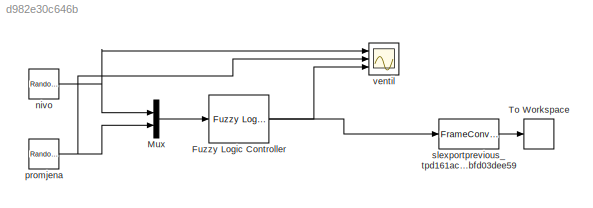
MODEL slx_d982e30c646b
KIND model
BLOCK [Reference] Fuzzy Logic Controller  REF=fuzblock/Fuzzy Logic   (lib defined in mdl_858b3b3e7478)
Controller
  FIS = fazzi
  Ports = [1, 1]
  RTWMemSecDataConstants = Inherit from model
  RTWMemSecDataInternal = Inherit from model
  RTWMemSecDataParameters = Inherit from model
  RTWMemSecFuncExecute = Inherit from model
  RTWMemSecFuncInitTerm = Inherit from model
  SourceBlock = fuzblock/Fuzzy Logic \nController
  SourceType = Fuzzy Inference System
BLOCK [Mux] Mux
  DisplayOption = bar
  Inputs = 2
  Ports = [2, 1]
BLOCK [ToWorkspace] To Workspace
  FixptAsFi = on
  MaxDataPoints = inf
  Ports = [1]
  SampleTime = -1
  VariableName = f
BLOCK [RandomNumber] nivo
  Mean = -1
  SampleTime = 0.1
BLOCK [RandomNumber] promjena
  Mean = -0.55
  SampleTime = 0.1
  Variance = 0.55
BLOCK [FrameConversion] slexportprevious_tpd161ac58_ee54_435b_bbae_77bfd03dee59
  OutFrame = Sample-based
  Ports = [1, 1]
BLOCK [Scope] ventil
  DataFormat = Array
  Decimation = 1
  Floating = off
  Grid = on
  LimitDataPoints = on
  MaxDataPoints = 5000
  NumInputPorts = 3
  Ports = [3]
  SampleInput = off
  SampleTime = -1
  SaveName = ScopeData
  SaveToWorkspace = off
  ShowLegends = on
  TickLabels = on
  TimeRange = auto
  YMax = 5~5~5
  YMin = -5~-5~-5
  ZoomMode = on
NET Fuzzy Logic Controller:1 -> slexportprevious_tpd161ac58_ee54_435b_bbae_77bfd03dee59:1, ventil:3
LINE Mux:1 -> Fuzzy Logic Controller:1
NET nivo:1 -> Mux:1, ventil:1
NET promjena:1 -> Mux:2, ventil:2
LINE slexportprevious_tpd161ac58_ee54_435b_bbae_77bfd03dee59:1 -> To Workspace:1
note: NET lines group one-source signal fan-out (src -> all destinations, sorted); 1:1 wires keep LINE
